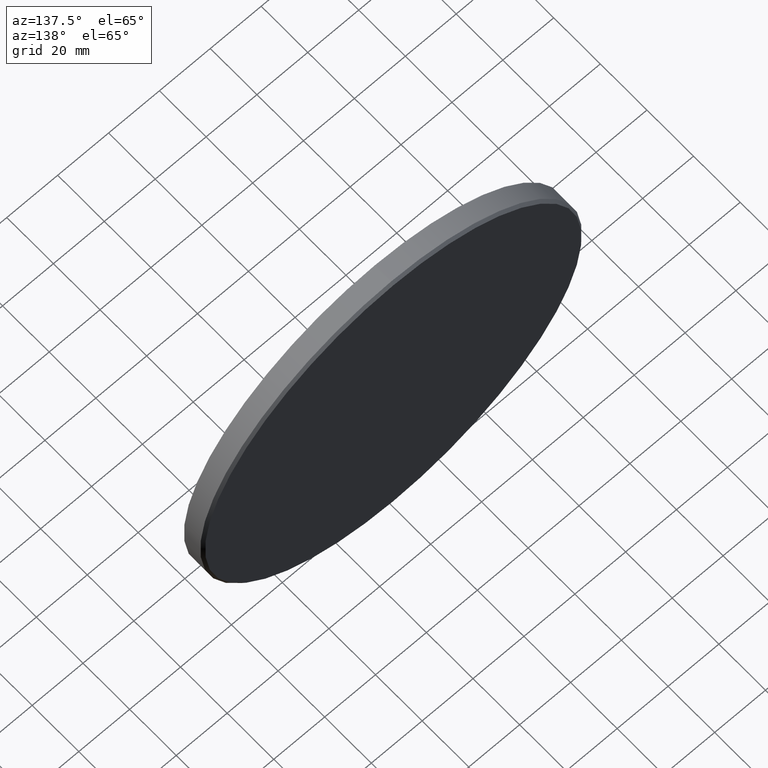
[diagram: clean part render]
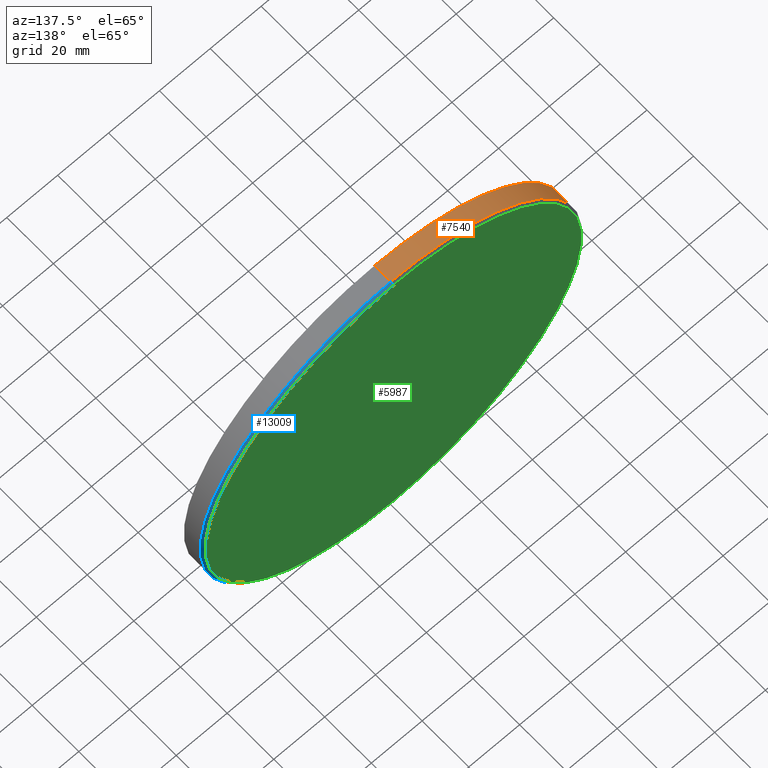
[diagram: same view with three faces highlighted in distinct colors, each labeled with its STEP entity id]
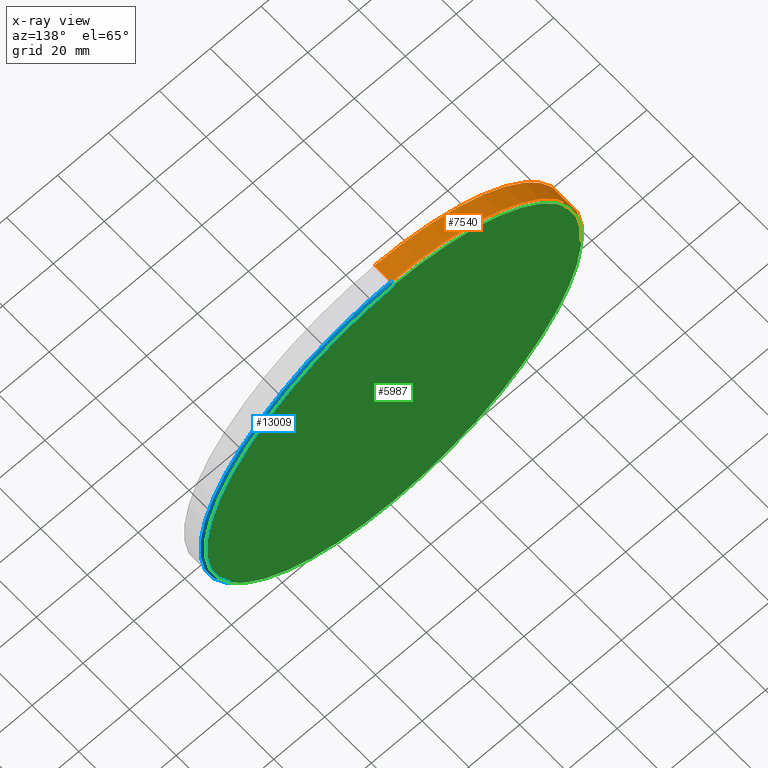
[diagram: x-ray of the same camera — body ghosted, the three highlighted faces saturated]
A machine part, auxiliary view with three faces highlighted in distinct colors.
The next image is the same camera in x-ray (body ghosted, the three faces saturated) — at least one of them is partly hidden behind the body in this view.
Their STEP definitions:

[orange] entity #7540 — the highlighted cylindrical surface (partial cylindrical patch) has radius 75 mm, axis along (-0, -1, -0).
#1256 = VECTOR ( 'NONE', #6687, 1000.000000000000000 ) ;
#1378 = CARTESIAN_POINT ( 'NONE',  ( 0.000000000000000000, 2.999999999999985345, -75.00000000000001421 ) ) ;
#1396 = ORIENTED_EDGE ( 'NONE', *, *, #10957, .F. ) ;
#1684 = CYLINDRICAL_SURFACE ( 'NONE', #3530, 75.00000000000001421 ) ;
#1834 = DIRECTION ( 'NONE',  ( 0.000000000000000000, 0.000000000000000000, 1.000000000000000000 ) ) ;
#2254 = VERTEX_POINT ( 'NONE', #10477 ) ;
#3530 = AXIS2_PLACEMENT_3D ( 'NONE', #13538, #7385, #8578 ) ;
#3756 = DIRECTION ( 'NONE',  ( -0.000000000000000000, -1.000000000000000000, -0.000000000000000000 ) ) ;
#3931 = LINE ( 'NONE', #7726, #1256 ) ;
#4259 = DIRECTION ( 'NONE',  ( 0.000000000000000000, 1.000000000000000000, 0.000000000000000000 ) ) ;
#4467 = CIRCLE ( 'NONE', #13153, 75.00000000000001421 ) ;
#5072 = VERTEX_POINT ( 'NONE', #13058 ) ;
#5402 = CARTESIAN_POINT ( 'NONE',  ( 0.000000000000000000, -4.000000000000000000, 0.000000000000000000 ) ) ;
#5625 = ORIENTED_EDGE ( 'NONE', *, *, #6750, .T. ) ;
#6687 = DIRECTION ( 'NONE',  ( -0.000000000000000000, -1.000000000000000000, -0.000000000000000000 ) ) ;
#6750 = EDGE_CURVE ( 'NONE', #14591, #10565, #10960, .T. ) ;
#6807 = CARTESIAN_POINT ( 'NONE',  ( 0.000000000000000000, 2.999999999999985345, 0.000000000000000000 ) ) ;
#7013 = EDGE_CURVE ( 'NONE', #2254, #14591, #15384, .T. ) ;
#7385 = DIRECTION ( 'NONE',  ( -0.000000000000000000, -1.000000000000000000, -0.000000000000000000 ) ) ;
#7540 = ADVANCED_FACE ( 'NONE', ( #9968 ), #1684, .T. ) ;
#7663 = VECTOR ( 'NONE', #3756, 1000.000000000000000 ) ;
#7726 = CARTESIAN_POINT ( 'NONE',  ( 9.184850993605150311E-15, 4.000000000000000000, 75.00000000000001421 ) ) ;
#8578 = DIRECTION ( 'NONE',  ( 0.000000000000000000, 0.000000000000000000, -1.000000000000000000 ) ) ;
#9176 = DIRECTION ( 'NONE',  ( 0.000000000000000000, 0.000000000000000000, 1.000000000000000000 ) ) ;
#9629 = CARTESIAN_POINT ( 'NONE',  ( 0.000000000000000000, 4.000000000000000000, -75.00000000000001421 ) ) ;
#9968 = FACE_OUTER_BOUND ( 'NONE', #11693, .T. ) ;
#10072 = ORIENTED_EDGE ( 'NONE', *, *, #14852, .T. ) ;
#10234 = AXIS2_PLACEMENT_3D ( 'NONE', #6807, #10325, #9176 ) ;
#10325 = DIRECTION ( 'NONE',  ( 0.000000000000000000, -1.000000000000000000, 0.000000000000000000 ) ) ;
#10477 = CARTESIAN_POINT ( 'NONE',  ( 9.184850993605150311E-15, 2.999999999999985345, 75.00000000000001421 ) ) ;
#10565 = VERTEX_POINT ( 'NONE', #11628 ) ;
#10957 = EDGE_CURVE ( 'NONE', #2254, #5072, #3931, .T. ) ;
#10960 = LINE ( 'NONE', #9629, #7663 ) ;
#11628 = CARTESIAN_POINT ( 'NONE',  ( 0.000000000000000000, -4.000000000000000000, -75.00000000000001421 ) ) ;
#11693 = EDGE_LOOP ( 'NONE', ( #1396, #11825, #5625, #10072 ) ) ;
#11825 = ORIENTED_EDGE ( 'NONE', *, *, #7013, .T. ) ;
#13058 = CARTESIAN_POINT ( 'NONE',  ( 9.184850993605150311E-15, -4.000000000000000000, 75.00000000000001421 ) ) ;
#13153 = AXIS2_PLACEMENT_3D ( 'NONE', #5402, #4259, #1834 ) ;
#13538 = CARTESIAN_POINT ( 'NONE',  ( 0.000000000000000000, 4.000000000000000000, 0.000000000000000000 ) ) ;
#14591 = VERTEX_POINT ( 'NONE', #1378 ) ;
#14852 = EDGE_CURVE ( 'NONE', #10565, #5072, #4467, .T. ) ;
#15384 = CIRCLE ( 'NONE', #10234, 75.00000000000001421 ) ;

[blue] entity #13009 — the highlighted conical surface has half-angle 45 deg.
#1378 = CARTESIAN_POINT ( 'NONE',  ( 0.000000000000000000, 2.999999999999985345, -75.00000000000001421 ) ) ;
#1755 = ORIENTED_EDGE ( 'NONE', *, *, #12437, .F. ) ;
#2178 = VECTOR ( 'NONE', #11819, 1000.000000000000000 ) ;
#2254 = VERTEX_POINT ( 'NONE', #10477 ) ;
#2559 = CIRCLE ( 'NONE', #7720, 73.99999999999998579 ) ;
#2704 = EDGE_CURVE ( 'NONE', #14591, #2254, #6946, .T. ) ;
#2829 = DIRECTION ( 'NONE',  ( 0.000000000000000000, 1.000000000000000000, 0.000000000000000000 ) ) ;
#3092 = DIRECTION ( 'NONE',  ( 0.000000000000000000, 0.000000000000000000, 1.000000000000000000 ) ) ;
#3119 = CARTESIAN_POINT ( 'NONE',  ( 0.000000000000000000, 4.000000000000000000, -73.99999999999998579 ) ) ;
#3700 = VECTOR ( 'NONE', #6974, 1000.000000000000000 ) ;
#4317 = CARTESIAN_POINT ( 'NONE',  ( 0.000000000000000000, 4.000000000000000000, -73.99999999999998579 ) ) ;
#4504 = LINE ( 'NONE', #4317, #2178 ) ;
#5578 = VERTEX_POINT ( 'NONE', #3119 ) ;
#6720 = ORIENTED_EDGE ( 'NONE', *, *, #14197, .T. ) ;
#6946 = CIRCLE ( 'NONE', #7124, 75.00000000000001421 ) ;
#6974 = DIRECTION ( 'NONE',  ( 8.659560562354994488E-17, -0.7071067811865426878, 0.7071067811865524577 ) ) ;
#7000 = CONICAL_SURFACE ( 'NONE', #12476, 73.99999999999998579, 0.7853981633974552734 ) ;
#7124 = AXIS2_PLACEMENT_3D ( 'NONE', #13120, #11890, #3092 ) ;
#7595 = ORIENTED_EDGE ( 'NONE', *, *, #2704, .F. ) ;
#7720 = AXIS2_PLACEMENT_3D ( 'NONE', #13994, #2829, #15339 ) ;
#8172 = CARTESIAN_POINT ( 'NONE',  ( 9.062386313690412007E-15, 4.000000000000000000, 73.99999999999998579 ) ) ;
#10355 = CARTESIAN_POINT ( 'NONE',  ( 9.123618653647781159E-15, 4.000000000000000000, 73.99999999999998579 ) ) ;
#10477 = CARTESIAN_POINT ( 'NONE',  ( 9.184850993605150311E-15, 2.999999999999985345, 75.00000000000001421 ) ) ;
#11639 = FACE_OUTER_BOUND ( 'NONE', #12268, .T. ) ;
#11819 = DIRECTION ( 'NONE',  ( 0.000000000000000000, -0.7071067811865426878, -0.7071067811865524577 ) ) ;
#11890 = DIRECTION ( 'NONE',  ( 0.000000000000000000, -1.000000000000000000, 0.000000000000000000 ) ) ;
#12004 = LINE ( 'NONE', #8172, #3700 ) ;
#12171 = DIRECTION ( 'NONE',  ( 0.000000000000000000, -1.000000000000000000, 0.000000000000000000 ) ) ;
#12268 = EDGE_LOOP ( 'NONE', ( #14367, #6720, #7595, #1755 ) ) ;
#12437 = EDGE_CURVE ( 'NONE', #5578, #14591, #4504, .T. ) ;
#12476 = AXIS2_PLACEMENT_3D ( 'NONE', #13241, #12171, #13354 ) ;
#13009 = ADVANCED_FACE ( 'NONE', ( #11639 ), #7000, .T. ) ;
#13120 = CARTESIAN_POINT ( 'NONE',  ( 0.000000000000000000, 2.999999999999985345, 0.000000000000000000 ) ) ;
#13241 = CARTESIAN_POINT ( 'NONE',  ( 0.000000000000000000, 4.000000000000000000, 0.000000000000000000 ) ) ;
#13354 = DIRECTION ( 'NONE',  ( 0.000000000000000000, 0.000000000000000000, -1.000000000000000000 ) ) ;
#13762 = VERTEX_POINT ( 'NONE', #10355 ) ;
#13994 = CARTESIAN_POINT ( 'NONE',  ( 0.000000000000000000, 4.000000000000000000, 0.000000000000000000 ) ) ;
#14112 = EDGE_CURVE ( 'NONE', #13762, #5578, #2559, .T. ) ;
#14197 = EDGE_CURVE ( 'NONE', #13762, #2254, #12004, .T. ) ;
#14367 = ORIENTED_EDGE ( 'NONE', *, *, #14112, .F. ) ;
#14591 = VERTEX_POINT ( 'NONE', #1378 ) ;
#15339 = DIRECTION ( 'NONE',  ( 0.000000000000000000, 0.000000000000000000, 1.000000000000000000 ) ) ;

[green] entity #5987 — the highlighted planar face has unit normal (0, 1, 0).
#724 = DIRECTION ( 'NONE',  ( 0.000000000000000000, -0.000000000000000000, 1.000000000000000000 ) ) ;
#2267 = ORIENTED_EDGE ( 'NONE', *, *, #14790, .T. ) ;
#2559 = CIRCLE ( 'NONE', #7720, 73.99999999999998579 ) ;
#2829 = DIRECTION ( 'NONE',  ( 0.000000000000000000, 1.000000000000000000, 0.000000000000000000 ) ) ;
#3119 = CARTESIAN_POINT ( 'NONE',  ( 0.000000000000000000, 4.000000000000000000, -73.99999999999998579 ) ) ;
#5578 = VERTEX_POINT ( 'NONE', #3119 ) ;
#5790 = PLANE ( 'NONE',  #15503 ) ;
#5987 = ADVANCED_FACE ( 'NONE', ( #13264 ), #5790, .T. ) ;
#7720 = AXIS2_PLACEMENT_3D ( 'NONE', #13994, #2829, #15339 ) ;
#8715 = CIRCLE ( 'NONE', #12840, 73.99999999999998579 ) ;
#9058 = ORIENTED_EDGE ( 'NONE', *, *, #14112, .T. ) ;
#9426 = CARTESIAN_POINT ( 'NONE',  ( 0.000000000000000000, 4.000000000000000000, 0.000000000000000000 ) ) ;
#10355 = CARTESIAN_POINT ( 'NONE',  ( 9.123618653647781159E-15, 4.000000000000000000, 73.99999999999998579 ) ) ;
#10642 = DIRECTION ( 'NONE',  ( 0.000000000000000000, 1.000000000000000000, 0.000000000000000000 ) ) ;
#11418 = EDGE_LOOP ( 'NONE', ( #2267, #9058 ) ) ;
#12574 = CARTESIAN_POINT ( 'NONE',  ( 0.000000000000000000, 4.000000000000000000, 0.000000000000000000 ) ) ;
#12840 = AXIS2_PLACEMENT_3D ( 'NONE', #12574, #13850, #13799 ) ;
#13264 = FACE_OUTER_BOUND ( 'NONE', #11418, .T. ) ;
#13762 = VERTEX_POINT ( 'NONE', #10355 ) ;
#13799 = DIRECTION ( 'NONE',  ( 0.000000000000000000, 0.000000000000000000, 1.000000000000000000 ) ) ;
#13850 = DIRECTION ( 'NONE',  ( 0.000000000000000000, 1.000000000000000000, 0.000000000000000000 ) ) ;
#13994 = CARTESIAN_POINT ( 'NONE',  ( 0.000000000000000000, 4.000000000000000000, 0.000000000000000000 ) ) ;
#14112 = EDGE_CURVE ( 'NONE', #13762, #5578, #2559, .T. ) ;
#14790 = EDGE_CURVE ( 'NONE', #5578, #13762, #8715, .T. ) ;
#15339 = DIRECTION ( 'NONE',  ( 0.000000000000000000, 0.000000000000000000, 1.000000000000000000 ) ) ;
#15503 = AXIS2_PLACEMENT_3D ( 'NONE', #9426, #10642, #724 ) ;